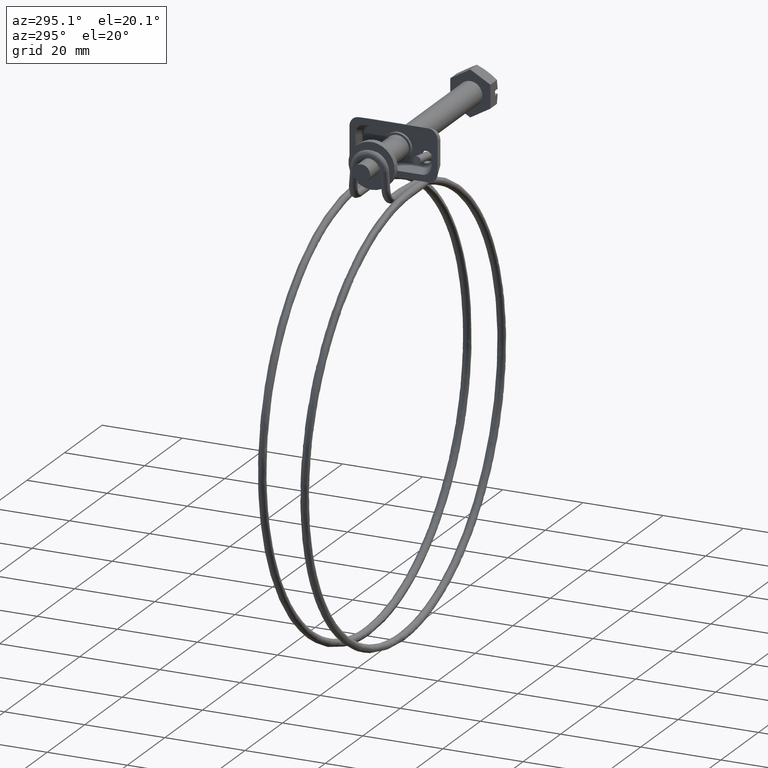
[diagram: clean part render]
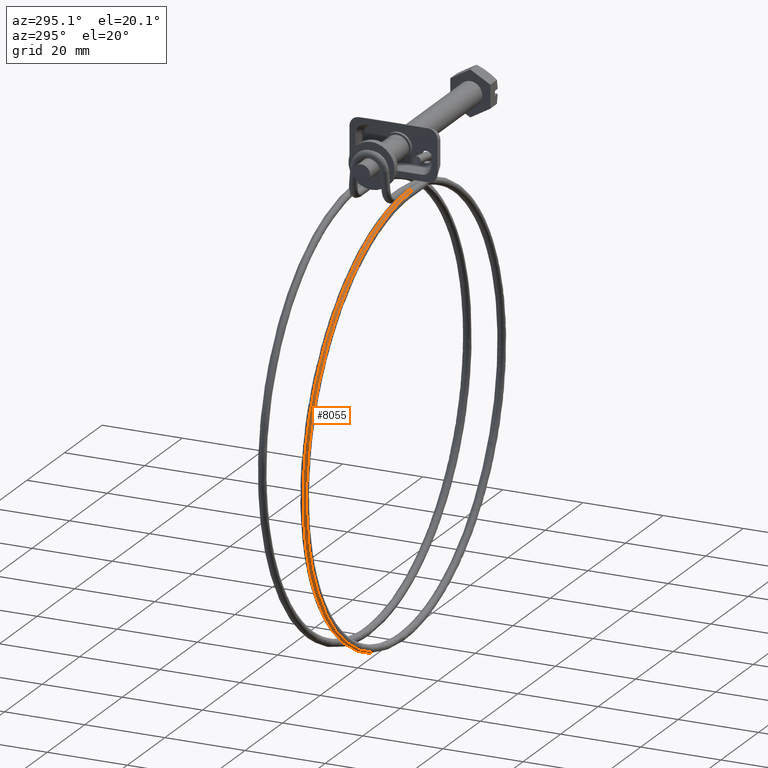
[diagram: same view with one face highlighted and labeled with its STEP entity id]
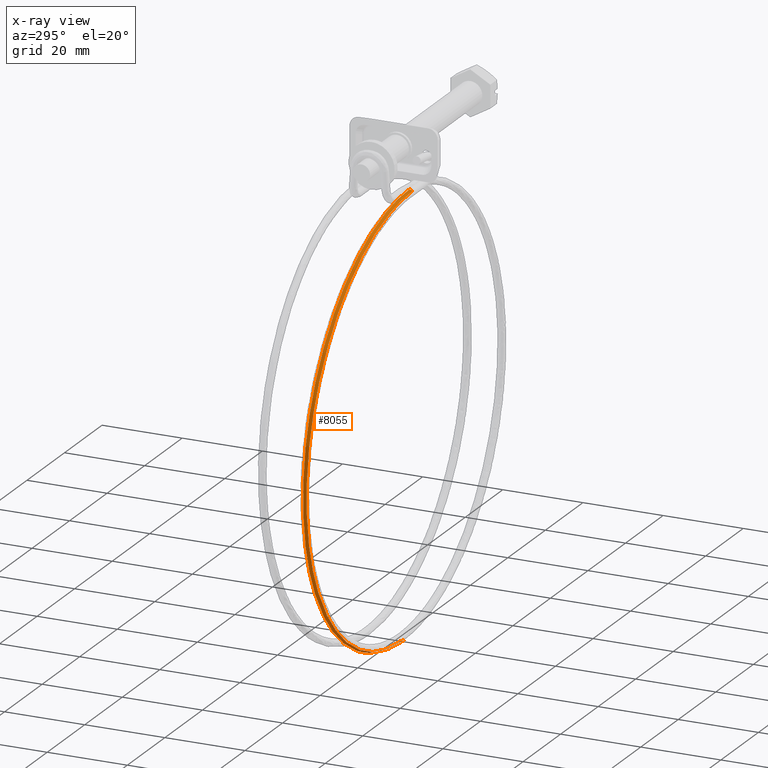
[diagram: x-ray of the same camera — body ghosted, the highlighted face saturated]
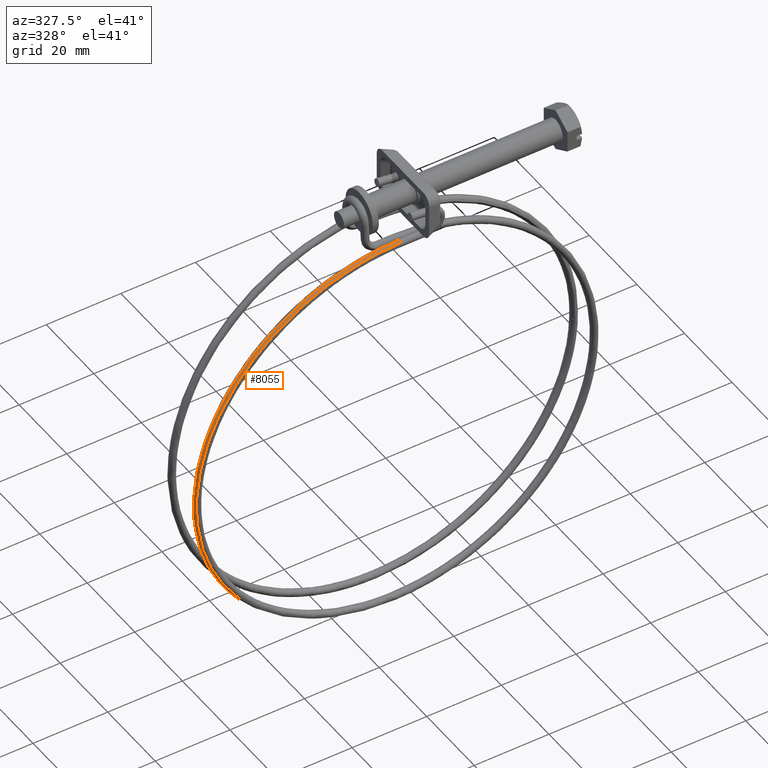
[diagram: same view with one face highlighted and labeled with its STEP entity id]
A machine part, auxiliary view. The second image highlights one B-rep face of the part: STEP entity #8055.
The next image is the same camera in x-ray: the body ghosted, the highlighted face saturated — about 0% of this face is hidden behind the body in this view.
A second angle (auxiliary view) of the same face is appended — the face is thin or edge-on in the first view.
In plain terms, the highlighted face is a freeform B-spline surface patch.
Its self-contained STEP definition (entity closure, byte-faithful):
#5919=CARTESIAN_POINT('',(-45.949999999998703,-6.347558821342070,-6.850706506990100));
#5920=VERTEX_POINT('',#5919);
#5928=CARTESIAN_POINT('',(-45.949999999998703,-7.064145653781002,-7.193325254520285));
#5929=VERTEX_POINT('',#5928);
#5930=CARTESIAN_POINT('',(-45.949999999998703,-6.347558821342070,-6.850706506990100));
#5931=CARTESIAN_POINT('',(-45.949999999998703,-6.609173507843110,-6.860538864742540));
#5932=CARTESIAN_POINT('',(-45.949999999998703,-6.865129597917909,-6.978007738198070));
#5933=CARTESIAN_POINT('',(-45.949999999998703,-7.050288391464181,-7.177627812710369));
#5934=CARTESIAN_POINT('',(-45.949999999998703,-7.057282002596878,-7.185421226771132));
#5935=CARTESIAN_POINT('',(-45.949999999998703,-7.064145653781002,-7.193325254520285));
#5936=B_SPLINE_CURVE_WITH_KNOTS('',3,(#5930,#5931,#5932,#5933,#5934,#5935),.UNSPECIFIED.,.F.,.U.,(4,2,4),(0.0,0.125000000000000,0.130000225952729),.UNSPECIFIED.);
#5937=EDGE_CURVE('',#5920,#5929,#5936,.T.);
#6675=CARTESIAN_POINT('',(-45.950000000001253,-5.028950952944387,-115.534536709492800));
#6676=VERTEX_POINT('',#6675);
#6688=CARTESIAN_POINT('',(-45.949999999969982,-4.300002000000003,-115.850000999999910));
#6689=VERTEX_POINT('',#6688);
#6690=CARTESIAN_POINT('',(-45.949999999969982,-4.300002000000003,-115.850000999999910));
#6691=CARTESIAN_POINT('',(-45.950000000001197,-4.561801387799146,-115.850000999999910));
#6692=CARTESIAN_POINT('',(-45.950000000001197,-4.821988658763279,-115.742227903609700));
#6693=CARTESIAN_POINT('',(-45.950000000001197,-5.014513920710638,-115.549702641662410));
#6694=CARTESIAN_POINT('',(-45.950000000001197,-5.021795293807691,-115.542177383844900));
#6695=CARTESIAN_POINT('',(-45.950000000001253,-5.028950952944387,-115.534536709492800));
#6696=B_SPLINE_CURVE_WITH_KNOTS('',3,(#6690,#6691,#6692,#6693,#6694,#6695),.UNSPECIFIED.,.F.,.U.,(4,2,4),(0.0,0.125000000000000,0.130000225952720),.UNSPECIFIED.);
#6697=EDGE_CURVE('',#6689,#6676,#6696,.T.);
#7945=CARTESIAN_POINT('',(-45.950000000001253,-5.028950952944387,-115.534536709492800));
#7946=CARTESIAN_POINT('',(-53.042240966284723,-5.028951582325362,-115.534536717957810));
#7947=CARTESIAN_POINT('',(-60.129318017264502,-5.055437383008081,-114.124562558779500));
#7948=CARTESIAN_POINT('',(-73.231725198274376,-5.157388892685021,-108.697293087288600));
#7949=CARTESIAN_POINT('',(-79.240741991661594,-5.232813834359577,-104.682134463084790));
#7950=CARTESIAN_POINT('',(-89.268742537787546,-5.421192386559064,-94.654022386808109));
#7951=CARTESIAN_POINT('',(-93.283783373338906,-5.534071883516574,-88.645014283403711));
#7952=CARTESIAN_POINT('',(-98.710841336742448,-5.780197427712612,-75.542808574703614));
#7953=CARTESIAN_POINT('',(-100.120725091942210,-5.913346674754897,-68.454764014190957));
#7954=CARTESIAN_POINT('',(-100.120725091845000,-6.179749931972519,-54.273097949819302));
#7955=CARTESIAN_POINT('',(-98.710841336741495,-6.312899179015447,-47.185053389426201));
#7956=CARTESIAN_POINT('',(-93.283783373338437,-6.559024723210163,-34.082847680489181));
#7957=CARTESIAN_POINT('',(-89.268742537839643,-6.671904220166958,-28.073839577208791));
#7958=CARTESIAN_POINT('',(-79.240741991605773,-6.860282772369192,-18.045727500920890));
#7959=CARTESIAN_POINT('',(-73.231725198105437,-6.935707714046754,-14.030568876556259));
#7960=CARTESIAN_POINT('',(-60.129318017429611,-7.037659223714906,-8.603299405400477));
#7961=CARTESIAN_POINT('',(-53.042240929872072,-7.064412018034897,-7.193358602367872));
#7962=CARTESIAN_POINT('',(-45.949999999998703,-7.064145653781002,-7.193325254520285));
#7963=B_SPLINE_CURVE_WITH_KNOTS('',3,(#7945,#7946,#7947,#7948,#7949,#7950,#7951,#7952,#7953,#7954,#7955,#7956,#7957,#7958,#7959,#7960,#7961,#7962),.UNSPECIFIED.,.F.,.U.,(4,2,2,2,2,2,2,2,4),(0.467599831403225,0.526052021395740,0.584504211388255,0.642956401380771,0.701408591373286,0.759860781365801,0.818312971358317,0.876765161350832,0.935217351343347),.UNSPECIFIED.);
#7964=EDGE_CURVE('',#6676,#5929,#7963,.T.);
#7969=CARTESIAN_POINT('',(-45.949999999969982,-4.300002000000003,-115.850000999999910));
#7970=CARTESIAN_POINT('',(-53.085335400545652,-4.300002633245301,-115.850001000096800));
#7971=CARTESIAN_POINT('',(-60.215475190186503,-4.326649374690102,-114.431459149966500));
#7972=CARTESIAN_POINT('',(-73.397490017409865,-4.429220323668459,-108.971214551620900));
#7973=CARTESIAN_POINT('',(-79.443013155864250,-4.505103510337173,-104.931661790674000));
#7974=CARTESIAN_POINT('',(-89.531930600086042,-4.694626405710195,-94.842631942474114));
#7975=CARTESIAN_POINT('',(-93.571358272758204,-4.808191546208620,-88.797124406802354));
#7976=CARTESIAN_POINT('',(-99.031377787457458,-5.055811952983845,-75.615341435400239));
#7977=CARTESIAN_POINT('',(-100.449823607743800,-5.189769833551259,-68.484250214284941));
#7978=CARTESIAN_POINT('',(-100.449823607646590,-5.457790987792840,-54.216457292702110));
#7979=CARTESIAN_POINT('',(-99.031377787408104,-5.591748868358720,-47.085366071685051));
#7980=CARTESIAN_POINT('',(-93.571358272806052,-5.839369275136980,-33.903583100088582));
#7981=CARTESIAN_POINT('',(-89.531930600108410,-5.952934415635415,-27.858075564465299));
#7982=CARTESIAN_POINT('',(-79.443013155838003,-6.142457311005396,-17.769045716362552));
#7983=CARTESIAN_POINT('',(-73.397490017237800,-6.218340497683200,-13.729492955222380));
#7984=CARTESIAN_POINT('',(-60.215475190354653,-6.320911446646375,-8.269248357168351));
#7985=CARTESIAN_POINT('',(-53.085335363870414,-6.347825984354736,-6.850740158305275));
#7986=CARTESIAN_POINT('',(-45.949999999998703,-6.347558821342070,-6.850706506990100));
#7987=B_SPLINE_CURVE_WITH_KNOTS('',3,(#7969,#7970,#7971,#7972,#7973,#7974,#7975,#7976,#7977,#7978,#7979,#7980,#7981,#7982,#7983,#7984,#7985,#7986),.UNSPECIFIED.,.F.,.U.,(4,2,2,2,2,2,2,2,4),(0.467599831403225,0.526052021395740,0.584504211388255,0.642956401380771,0.701408591373286,0.759860781365801,0.818312971358317,0.876765161350832,0.935217351343347),.UNSPECIFIED.);
#7988=EDGE_CURVE('',#6689,#5920,#7987,.T.);
#7996=CARTESIAN_POINT('',(-45.093758565712477,-4.295917846553516,-115.850000999993800));
#7997=CARTESIAN_POINT('',(-45.093821362245130,-4.570927793711686,-115.851170059297500));
#7998=CARTESIAN_POINT('',(-45.095754558620968,-4.844580762333524,-115.733262209303700));
#7999=CARTESIAN_POINT('',(-45.098978757286332,-5.031741467599082,-115.531556979088290));
#8000=CARTESIAN_POINT('',(-45.379168386907018,-4.295938336124486,-115.848911558257300));
#8001=CARTESIAN_POINT('',(-45.379210251557723,-4.570948281778791,-115.850080697584800));
#8002=CARTESIAN_POINT('',(-45.380499058241462,-4.844601204137760,-115.732175307498490));
#8003=CARTESIAN_POINT('',(-45.382648539195117,-5.031761832247086,-115.530474179817700));
#8004=CARTESIAN_POINT('',(-52.799505727896019,-4.294851793751541,-115.906785719675700));
#8005=CARTESIAN_POINT('',(-52.799003387170252,-4.569861819073061,-115.907950617194900));
#8006=CARTESIAN_POINT('',(-52.783538786803852,-4.843517194853204,-115.789914549111900));
#8007=CARTESIAN_POINT('',(-52.757746816308682,-5.030681914825871,-115.587995472724200));
#8008=CARTESIAN_POINT('',(-67.348789671579780,-4.349220019162162,-113.012514590637290));
#8009=CARTESIAN_POINT('',(-67.347220295119143,-4.624226057002467,-113.013891758075900));
#8010=CARTESIAN_POINT('',(-67.298906912328491,-4.897758676757665,-112.902390555722800));
#8011=CARTESIAN_POINT('',(-67.218329508816325,-5.084718663324263,-112.711370378722900));
#8012=CARTESIAN_POINT('',(-85.490851577530080,-4.576938556422508,-100.890198289727000));
#8013=CARTESIAN_POINT('',(-85.487951889128837,-4.851927895514191,-100.892464395228300));
#8014=CARTESIAN_POINT('',(-85.398684744180059,-5.124946443276718,-100.808329184347000));
#8015=CARTESIAN_POINT('',(-85.249804364815560,-5.311049056926114,-100.662950201295100));
#8016=CARTESIAN_POINT('',(-97.612711013123402,-4.917716647252457,-82.749272559498110));
#8017=CARTESIAN_POINT('',(-97.608922665131175,-5.192681002641316,-82.752868643187753));
#8018=CARTESIAN_POINT('',(-97.492298062034592,-5.464930425063183,-82.709676926166310));
#8019=CARTESIAN_POINT('',(-97.297790719357096,-5.649750285990374,-82.632583793673660));
#8020=CARTESIAN_POINT('',(-101.868457206649790,-5.319697900893709,-61.350270299943517));
#8021=CARTESIAN_POINT('',(-101.864356918339500,-5.594632790407771,-61.355434965131657));
#8022=CARTESIAN_POINT('',(-101.738129206832890,-5.865975103403348,-61.360532158205871));
#8023=CARTESIAN_POINT('',(-101.527605731619300,-6.049282080779753,-61.363975613488698));
#8024=CARTESIAN_POINT('',(-97.612724997305676,-5.721679535555402,-39.951247757309268));
#8025=CARTESIAN_POINT('',(-97.608936648350621,-5.996584959165199,-39.957981005473698));
#8026=CARTESIAN_POINT('',(-97.492312015677982,-6.267020161881246,-40.011367153921327));
#8027=CARTESIAN_POINT('',(-97.297804623727743,-6.448814254291863,-40.095347272508512));
#8028=CARTESIAN_POINT('',(-85.490848874341964,-6.062475279811495,-21.810364674402070));
#8029=CARTESIAN_POINT('',(-85.487949186121398,-6.337355719105347,-21.818427897800451));
#8030=CARTESIAN_POINT('',(-85.398682046906899,-6.607021777605803,-21.912757442498211));
#8031=CARTESIAN_POINT('',(-85.249801677068803,-6.787533085648171,-22.065023248607570));
#8032=CARTESIAN_POINT('',(-67.348790601800772,-6.290083514786398,-9.688025745148204));
#8033=CARTESIAN_POINT('',(-67.347221225290227,-6.564947259335254,-9.696977907411077));
#8034=CARTESIAN_POINT('',(-67.298907840512086,-6.834099368880235,-9.818673508654801));
#8035=CARTESIAN_POINT('',(-67.218330433689346,-7.013753510191474,-10.016580618395380));
#8036=CARTESIAN_POINT('',(-52.799505509788283,-6.344786830139963,-6.793799395432139));
#8037=CARTESIAN_POINT('',(-52.799003169079903,-6.619646575029536,-6.802963826823038));
#8038=CARTESIAN_POINT('',(-52.783538569180791,-6.888675554276305,-6.931194149669057));
#8039=CARTESIAN_POINT('',(-52.757746599499718,-7.068124334964577,-7.139999914903512));
#8040=CARTESIAN_POINT('',(-45.379168389915392,-6.343435376598522,-6.851639819885099));
#8041=CARTESIAN_POINT('',(-45.379210254564420,-6.618295210783657,-6.860800009998632));
#8042=CARTESIAN_POINT('',(-45.380499061243597,-6.887326939373182,-6.988899765059837));
#8043=CARTESIAN_POINT('',(-45.382648542181713,-7.066780307841432,-7.197487768209362));
#8044=CARTESIAN_POINT('',(-45.093758570141659,-6.343445565647308,-6.850549083779753));
#8045=CARTESIAN_POINT('',(-45.093821366671882,-6.618305398702984,-6.859709353937374));
#8046=CARTESIAN_POINT('',(-45.095754563040920,-6.887337092536288,-6.987811573152418));
#8047=CARTESIAN_POINT('',(-45.098978761683448,-7.066790403131645,-7.196403686027825));
#8048=B_SPLINE_SURFACE_WITH_KNOTS('',3,3,((#7996,#8000,#8004,#8008,#8012,#8016,#8020,#8024,#8028,#8032,#8036,#8040,#8044),(#7997,#8001,#8005,#8009,#8013,#8017,#8021,#8025,#8029,#8033,#8037,#8041,#8045),(#7998,#8002,#8006,#8010,#8014,#8018,#8022,#8026,#8030,#8034,#8038,#8042,#8046),(#7999,#8003,#8007,#8011,#8015,#8019,#8023,#8027,#8031,#8035,#8039,#8043,#8047)),.UNSPECIFIED.,.F.,.F.,.U.,(4,4),(4,1,1,1,1,1,1,1,1,1,4),(0.0,0.825542852460804),(0.0,0.856235712490548,22.262129002426200,43.668022292361847,65.073915582297815,86.479808872233448,107.885702162169100,129.291595452105210,150.697488742040800,172.103382031976510,172.959617744436000),.UNSPECIFIED.);
#8049=ORIENTED_EDGE('',*,*,#5937,.F.);
#8050=ORIENTED_EDGE('',*,*,#7988,.F.);
#8051=ORIENTED_EDGE('',*,*,#6697,.T.);
#8052=ORIENTED_EDGE('',*,*,#7964,.T.);
#8053=EDGE_LOOP('',(#8049,#8050,#8051,#8052));
#8054=FACE_OUTER_BOUND('',#8053,.T.);
#8055=ADVANCED_FACE('',(#8054),#8048,.T.);